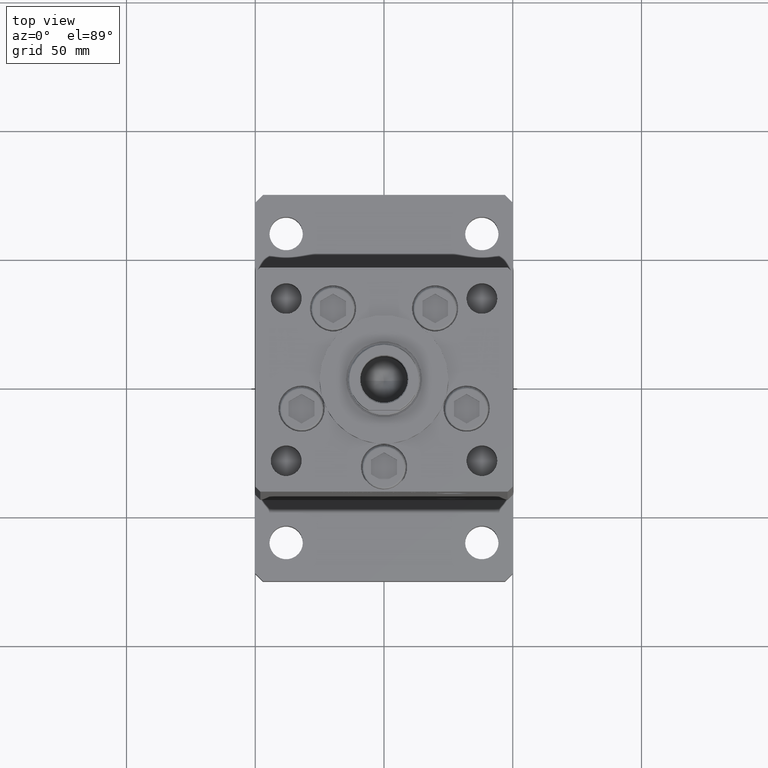
[diagram: clean part render]
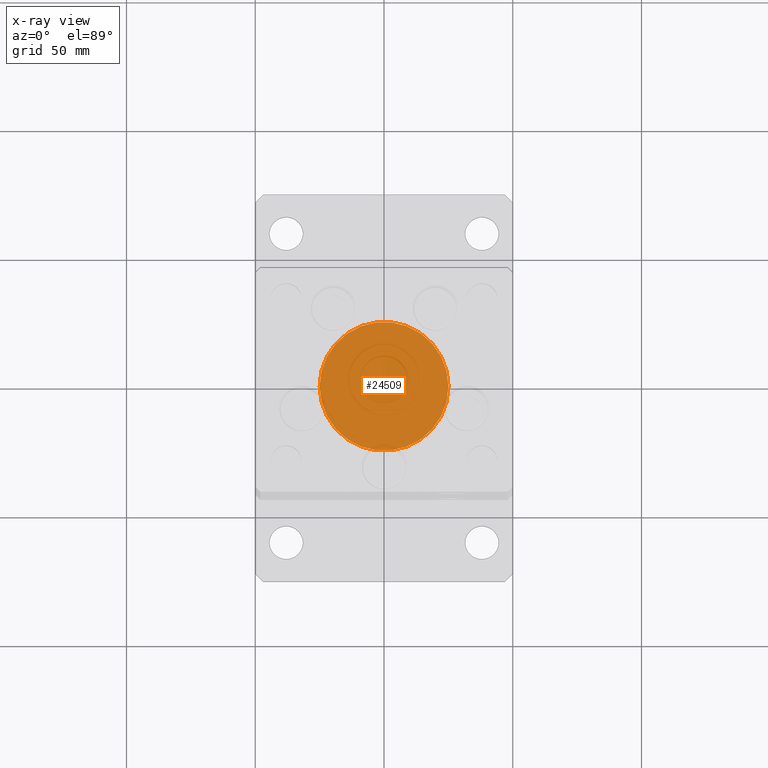
[diagram: x-ray — body ghosted, one internal face saturated and labeled with its STEP entity id]
A machine part, top view, then the same camera in x-ray: the body is ghosted and one INTERNAL B-rep face — a face not visible from any outside direction — is saturated and labeled: STEP entity #24509.
In plain terms, the highlighted planar face has unit normal (-0, 0, 1).
Its self-contained STEP definition (entity closure, byte-faithful):
#708 = EDGE_LOOP ( 'NONE', ( #30759, #38519 ) ) ;
#2371 = AXIS2_PLACEMENT_3D ( 'NONE', #40808, #51731, #24529 ) ;
#2777 = EDGE_CURVE ( 'NONE', #5462, #34439, #31968, .T. ) ;
#4188 = DIRECTION ( 'NONE',  ( 0.000000000000000000, 0.000000000000000000, -1.000000000000000000 ) ) ;
#5462 = VERTEX_POINT ( 'NONE', #10544 ) ;
#10544 = CARTESIAN_POINT ( 'NONE',  ( 25.00000000000000000, 0.000000000000000000, -34.25000000000000000 ) ) ;
#20757 = DIRECTION ( 'NONE',  ( -1.000000000000000000, 0.000000000000000000, 0.000000000000000000 ) ) ;
#23191 = CIRCLE ( 'NONE', #2371, 25.00000000000000000 ) ;
#23337 = PLANE ( 'NONE',  #47180 ) ;
#24509 = ADVANCED_FACE ( 'NONE', ( #27402 ), #23337, .T. ) ;
#24529 = DIRECTION ( 'NONE',  ( -1.000000000000000000, 0.000000000000000000, 0.000000000000000000 ) ) ;
#27402 = FACE_OUTER_BOUND ( 'NONE', #708, .T. ) ;
#30759 = ORIENTED_EDGE ( 'NONE', *, *, #2777, .T. ) ;
#31968 = CIRCLE ( 'NONE', #32006, 25.00000000000000000 ) ;
#32006 = AXIS2_PLACEMENT_3D ( 'NONE', #41382, #4188, #20757 ) ;
#34299 = EDGE_CURVE ( 'NONE', #34439, #5462, #23191, .T. ) ;
#34439 = VERTEX_POINT ( 'NONE', #47005 ) ;
#38519 = ORIENTED_EDGE ( 'NONE', *, *, #34299, .T. ) ;
#39892 = DIRECTION ( 'NONE',  ( 0.000000000000000000, 0.000000000000000000, -1.000000000000000000 ) ) ;
#40808 = CARTESIAN_POINT ( 'NONE',  ( 0.000000000000000000, 0.000000000000000000, -34.25000000000000000 ) ) ;
#41382 = CARTESIAN_POINT ( 'NONE',  ( 0.000000000000000000, 0.000000000000000000, -34.25000000000000000 ) ) ;
#43685 = CARTESIAN_POINT ( 'NONE',  ( 0.000000000000000000, 0.000000000000000000, -34.25000000000000000 ) ) ;
#43947 = DIRECTION ( 'NONE',  ( -1.000000000000000000, 0.000000000000000000, -0.000000000000000000 ) ) ;
#47005 = CARTESIAN_POINT ( 'NONE',  ( -25.00000000000000000, 3.061616997868382254E-15, -34.25000000000000000 ) ) ;
#47180 = AXIS2_PLACEMENT_3D ( 'NONE', #43685, #39892, #43947 ) ;
#51731 = DIRECTION ( 'NONE',  ( 0.000000000000000000, 0.000000000000000000, -1.000000000000000000 ) ) ;